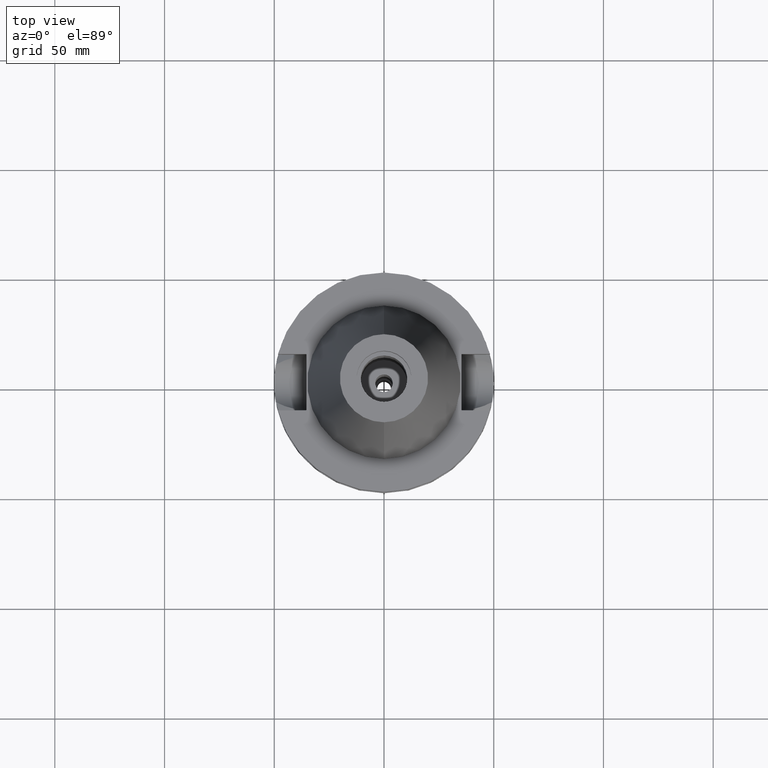
[diagram: clean part render]
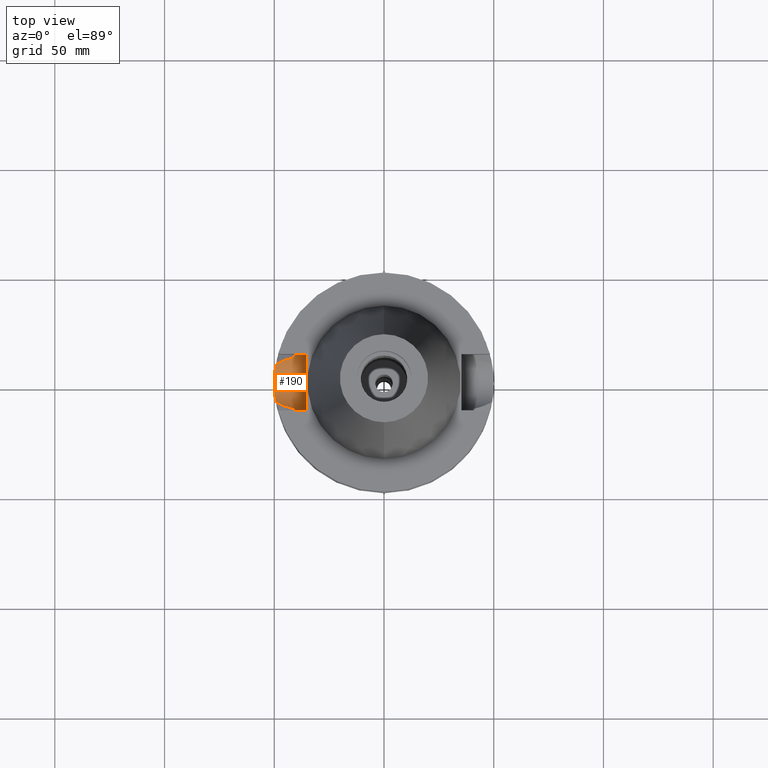
[diagram: same view with one face highlighted and labeled with its STEP entity id]
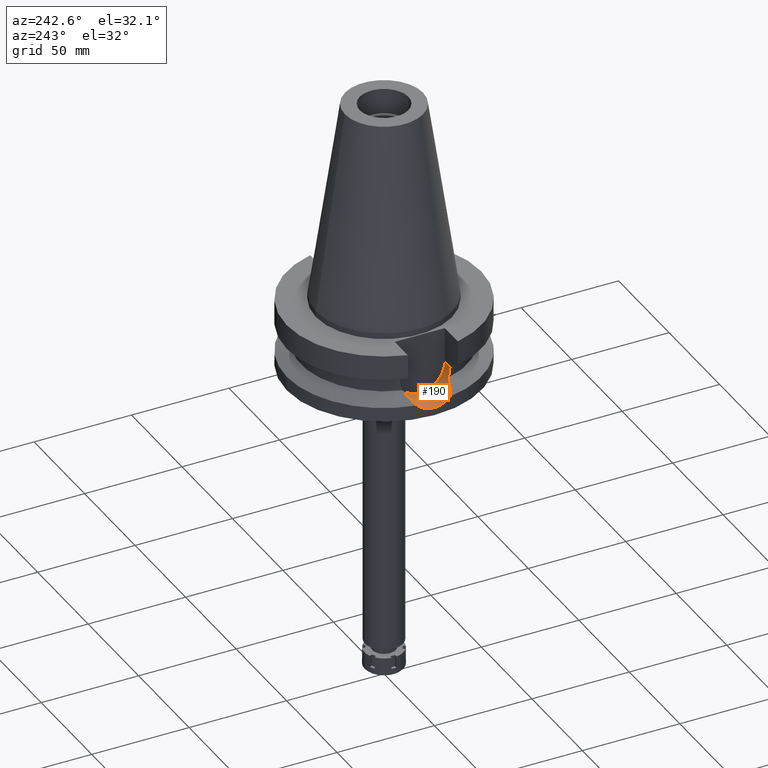
[diagram: same view with one face highlighted and labeled with its STEP entity id]
A machine part, top view. The second image highlights one B-rep face of the part: STEP entity #190.
A second angle (auxiliary view) of the same face is appended — the face is thin or edge-on in the first view.
In plain terms, the highlighted cylindrical surface (edge-blend (fillet) strip) has radius 12.85 mm, axis along (-1, 0, 0).
Its self-contained STEP definition (entity closure, byte-faithful):
#7 = CARTESIAN_POINT ( 'NONE',  ( -49.70815231116396404, 5.396331756492369180, -32.81362775790665864 ) ) ;
#28 = CARTESIAN_POINT ( 'NONE',  ( -49.99187456499022630, 0.9032426761927618841, -33.96962919614277610 ) ) ;
#53 = CARTESIAN_POINT ( 'NONE',  ( -49.72328725746910294, -5.263682542447209123, -32.87883983984767866 ) ) ;
#57 = CARTESIAN_POINT ( 'NONE',  ( -40.59188576338535626, 12.59181613885665385, -23.71309950381344933 ) ) ;
#71 = CARTESIAN_POINT ( 'NONE',  ( -49.55497938657500612, 6.656146421916068867, -32.14173509730801470 ) ) ;
#85 = B_SPLINE_CURVE_WITH_KNOTS ( 'NONE', 3,
 ( #2665, #1570, #409, #1220, #1867, #444, #3230, #1282, #2685, #1585, #2446, #466, #1809, #2425 ),
 .UNSPECIFIED., .F., .F.,
 ( 4, 2, 2, 1, 1, 2, 2, 4 ),
 ( 0.0000000000000000000, 0.2500000000000097700, 0.3750000000000154321, 0.4375000000000180966, 0.4687500000000194289, 0.4843750000000190403, 0.5000000000000186517, 1.000000000000000000 ),
 .UNSPECIFIED. ) ;
#102 = EDGE_CURVE ( 'NONE', #3419, #2797, #1650, .T. ) ;
#140 = CARTESIAN_POINT ( 'NONE',  ( -45.42019457717190534, 10.35030528403051520, -28.76537017674415964 ) ) ;
#152 = EDGE_CURVE ( 'NONE', #1960, #2797, #3336, .T. ) ;
#190 = ADVANCED_FACE ( 'NONE', ( #527 ), #1096, .F. ) ;
#209 = LINE ( 'NONE', #1025, #687 ) ;
#231 = CARTESIAN_POINT ( 'NONE',  ( -49.47566580406373760, 7.222569676697139229, -31.77964915373136279 ) ) ;
#281 = CARTESIAN_POINT ( 'NONE',  ( -49.80427849007765673, -4.419869523326255489, -33.21613890185354023 ) ) ;
#308 = VERTEX_POINT ( 'NONE', #1770 ) ;
#317 = CARTESIAN_POINT ( 'NONE',  ( -49.55322993650355556, 6.669162168907335264, -32.13384980552147852 ) ) ;
#322 = CARTESIAN_POINT ( 'NONE',  ( -40.59544857123437112, 12.58031941217195815, -23.76894563306476016 ) ) ;
#332 = AXIS2_PLACEMENT_3D ( 'NONE', #1383, #1113, #822 ) ;
#333 = CARTESIAN_POINT ( 'NONE',  ( -49.57420851442166310, -6.511617492667277851, -32.22817501051599010 ) ) ;
#343 = CARTESIAN_POINT ( 'NONE',  ( -40.51083188481999997, 12.84999999999999964, -21.14999999999999858 ) ) ;
#352 = ORIENTED_EDGE ( 'NONE', *, *, #503, .T. ) ;
#358 = CARTESIAN_POINT ( 'NONE',  ( -49.98151994496642914, -1.536776125549248917, -33.93130987534129162 ) ) ;
#363 = CARTESIAN_POINT ( 'NONE',  ( -40.85052569294000335, 11.72538061688000077, -26.40718074535000426 ) ) ;
#370 = ORIENTED_EDGE ( 'NONE', *, *, #102, .T. ) ;
#371 = CARTESIAN_POINT ( 'NONE',  ( -45.20729632760484407, 10.43022660862786921, -28.65586756579891770 ) ) ;
#374 = CARTESIAN_POINT ( 'NONE',  ( -49.26250064874000145, -8.556052234130000045, -30.73730776426999967 ) ) ;
#409 = CARTESIAN_POINT ( 'NONE',  ( -40.74530521662885718, -12.08734525798915982, -25.53455946907622476 ) ) ;
#428 = CARTESIAN_POINT ( 'NONE',  ( -42.55574160578765230, 11.29794399686500306, -27.28962728501409174 ) ) ;
#444 = CARTESIAN_POINT ( 'NONE',  ( -40.63720027270115054, -12.44499102499862353, -24.35263434040134101 ) ) ;
#447 = EDGE_LOOP ( 'NONE', ( #352, #3482, #370, #3694, #3172, #1712, #2943, #633 ) ) ;
#452 = CARTESIAN_POINT ( 'NONE',  ( -40.85052569294000335, 11.72538061688000077, -26.40718074535000426 ) ) ;
#466 = CARTESIAN_POINT ( 'NONE',  ( -40.54025138676031048, -12.75862549540203794, -22.93152005439002750 ) ) ;
#496 = B_SPLINE_CURVE_WITH_KNOTS ( 'NONE', 3,
 ( #865, #1140, #1786, #2575, #2271, #3165, #586, #1709, #2326, #2003, #2607, #2057, #2284, #3132, #1728, #1195 ),
 .UNSPECIFIED., .F., .F.,
 ( 4, 2, 2, 1, 1, 1, 1, 2, 2, 4 ),
 ( 0.0000000000000000000, 0.2499999999999403810, 0.3749999999999105715, 0.4374999999998964162, 0.4687499999998883116, 0.4843749999998834821, 0.4921874999998822053, 0.4960937499998825939, 0.4999999999998829825, 1.000000000000000000 ),
 .UNSPECIFIED. ) ;
#503 = EDGE_CURVE ( 'NONE', #572, #308, #85, .T. ) ;
#509 = DIRECTION ( 'NONE',  ( 0.0000000000000000000, -1.000000000000000000, 0.0000000000000000000 ) ) ;
#513 = CARTESIAN_POINT ( 'NONE',  ( -49.32372953362855128, 8.203519559120605820, -31.05192038084446793 ) ) ;
#527 = FACE_OUTER_BOUND ( 'NONE', #447, .T. ) ;
#559 = CARTESIAN_POINT ( 'NONE',  ( -49.99991418524941622, 0.01116271476028290327, -34.00001628486788974 ) ) ;
#572 = VERTEX_POINT ( 'NONE', #678 ) ;
#579 = CARTESIAN_POINT ( 'NONE',  ( -49.38324903674247679, -7.860828855443511287, -31.35774967441727057 ) ) ;
#586 = CARTESIAN_POINT ( 'NONE',  ( -45.98824443354860136, -10.13011390609869800, -29.05741297239413612 ) ) ;
#598 = CARTESIAN_POINT ( 'NONE',  ( -40.57496242610246640, 12.64633064307739474, -23.43373649621299748 ) ) ;
#611 = CARTESIAN_POINT ( 'NONE',  ( -49.79144986254237892, -4.561756691881045711, -33.16303606681064053 ) ) ;
#618 = CARTESIAN_POINT ( 'NONE',  ( -40.56599794183719609, 12.67508828619679484, -23.26599945042062245 ) ) ;
#629 = CARTESIAN_POINT ( 'NONE',  ( -49.78714585121937830, 4.608515934852143836, -33.14520686594116938 ) ) ;
#633 = ORIENTED_EDGE ( 'NONE', *, *, #1400, .T. ) ;
#661 = CARTESIAN_POINT ( 'NONE',  ( -41.72877758692180095, 11.52142555084906839, -26.86207299536003745 ) ) ;
#678 = CARTESIAN_POINT ( 'NONE',  ( -40.85052569294000335, -11.72538061688000077, -26.40718074535000426 ) ) ;
#687 = VECTOR ( 'NONE', #2161, 1000.000000000000000 ) ;
#822 = DIRECTION ( 'NONE',  ( 0.0000000000000000000, 0.0000000000000000000, -1.000000000000000000 ) ) ;
#841 = B_SPLINE_CURVE_WITH_KNOTS ( 'NONE', 3,
 ( #1848, #661, #428, #2938, #2424, #2087, #1526, #371, #1769, #140, #1569, #1808, #1792, #3229, #2065 ),
 .UNSPECIFIED., .F., .F.,
 ( 4, 2, 2, 1, 1, 1, 2, 2, 4 ),
 ( 0.0000000000000000000, 0.2499999999999895084, 0.3749999999999845124, 0.4374999999999819034, 0.4687499999999807931, 0.4843749999999808487, 0.4921874999999811262, 0.4999999999999813483, 1.000000000000000000 ),
 .UNSPECIFIED. ) ;
#859 = CARTESIAN_POINT ( 'NONE',  ( -49.66436400019284036, -5.785502170138319578, -32.62553262874713766 ) ) ;
#865 = CARTESIAN_POINT ( 'NONE',  ( -49.26250064874000145, -8.556052234130000045, -30.73730776426999967 ) ) ;
#878 = CARTESIAN_POINT ( 'NONE',  ( -49.54076674236112154, 6.761186822949497355, -32.07757331953104085 ) ) ;
#888 = CARTESIAN_POINT ( 'NONE',  ( -40.51083188482001418, 12.85000000000001918, -21.59155125953545706 ) ) ;
#898 = CARTESIAN_POINT ( 'NONE',  ( -49.79360975992653948, -4.538122689754245265, -33.17198411707287420 ) ) ;
#912 = CARTESIAN_POINT ( 'NONE',  ( -49.64367505699853211, -5.960659301228142581, -32.53565567264092806 ) ) ;
#931 = CARTESIAN_POINT ( 'NONE',  ( -49.55655204302973260, 6.644431293626245072, -32.14882155011933662 ) ) ;
#951 = CARTESIAN_POINT ( 'NONE',  ( -35.39999999999999858, 12.84999999999999964, -21.14999999999999858 ) ) ;
#1025 = CARTESIAN_POINT ( 'NONE',  ( -35.39999999999999858, -12.84999999999999964, -21.14999999999999858 ) ) ;
#1096 = CYLINDRICAL_SURFACE ( 'NONE', #332, 12.85000000000000320 ) ;
#1113 = DIRECTION ( 'NONE',  ( -1.000000000000000000, 0.0000000000000000000, 0.0000000000000000000 ) ) ;
#1135 = CARTESIAN_POINT ( 'NONE',  ( -49.99657010601042373, 0.6197521076395832162, -33.98745896368237851 ) ) ;
#1140 = CARTESIAN_POINT ( 'NONE',  ( -48.69888589103209853, -8.879491551986198772, -30.44865908768751339 ) ) ;
#1168 = CARTESIAN_POINT ( 'NONE',  ( -49.64898610872444351, 5.924049220385970038, -32.55967030369412640 ) ) ;
#1190 = CARTESIAN_POINT ( 'NONE',  ( -49.55878331876228060, -6.627792135814813967, -32.15886750778756209 ) ) ;
#1195 = CARTESIAN_POINT ( 'NONE',  ( -40.85052569294000335, -11.72538061688000077, -26.40718074535000426 ) ) ;
#1207 = CARTESIAN_POINT ( 'NONE',  ( -49.76598423032054086, 4.832695556055663921, -33.05724367525100860 ) ) ;
#1220 = CARTESIAN_POINT ( 'NONE',  ( -40.68244639105407146, -12.29666286613858084, -24.88711474769678844 ) ) ;
#1282 = CARTESIAN_POINT ( 'NONE',  ( -40.61157027093302929, -12.52820949424839547, -24.00859467746296261 ) ) ;
#1344 = VERTEX_POINT ( 'NONE', #1633 ) ;
#1346 = DIRECTION ( 'NONE',  ( 1.000000000000000000, 3.301887120261000215E-14, -2.502482870091999982E-14 ) ) ;
#1383 = CARTESIAN_POINT ( 'NONE',  ( -35.39999999999999858, 1.497743035356999952E-14, -21.14999999999999858 ) ) ;
#1397 = DIRECTION ( 'NONE',  ( 1.000000000000000000, 0.0000000000000000000, 0.0000000000000000000 ) ) ;
#1400 = EDGE_CURVE ( 'NONE', #2746, #572, #496, .T. ) ;
#1421 = CARTESIAN_POINT ( 'NONE',  ( -35.39999999999999858, 1.497743035356999952E-14, -21.14999999999999858 ) ) ;
#1425 = CARTESIAN_POINT ( 'NONE',  ( -49.72680802968159242, 5.221633248987733289, -32.89276324341103219 ) ) ;
#1438 = CARTESIAN_POINT ( 'NONE',  ( -49.55415699598182044, -6.662282079215984254, -32.13801721395490318 ) ) ;
#1444 = EDGE_CURVE ( 'NONE', #1960, #2698, #1878, .T. ) ;
#1454 = CARTESIAN_POINT ( 'NONE',  ( -49.86316841597869143, 3.774661687920132014, -33.45988861054671304 ) ) ;
#1474 = CARTESIAN_POINT ( 'NONE',  ( -49.99991299091239227, -0.01387171431918541795, -34.00001339701643133 ) ) ;
#1485 = CARTESIAN_POINT ( 'NONE',  ( -40.58662774857589284, 12.60877356363140400, -23.62931612667402703 ) ) ;
#1494 = CARTESIAN_POINT ( 'NONE',  ( -49.54911688010221127, 6.699663358771625887, -32.11529720896147921 ) ) ;
#1526 = CARTESIAN_POINT ( 'NONE',  ( -44.90440048842951626, 10.54136038319483326, -28.50005410684843099 ) ) ;
#1569 = CARTESIAN_POINT ( 'NONE',  ( -45.46246369502895135, 10.33427461986800111, -28.78711008710929775 ) ) ;
#1570 = CARTESIAN_POINT ( 'NONE',  ( -40.79434733663808998, -11.92110265459549190, -25.97065107317780530 ) ) ;
#1585 = CARTESIAN_POINT ( 'NONE',  ( -40.60257244295533496, -12.55730800210175779, -23.87713024257998740 ) ) ;
#1633 = CARTESIAN_POINT ( 'NONE',  ( -49.26250064874000145, 8.556052234130000045, -30.73730776426999967 ) ) ;
#1645 = CARTESIAN_POINT ( 'NONE',  ( -49.37891072628274003, 7.861784141872273146, -31.32216870174199386 ) ) ;
#1650 = CIRCLE ( 'NONE', #2608, 12.84999999999999964 ) ;
#1654 = CARTESIAN_POINT ( 'NONE',  ( -35.39999999999999858, -12.84999999999999964, -21.14999999999999858 ) ) ;
#1703 = CARTESIAN_POINT ( 'NONE',  ( -49.86770969757689187, -3.635792841928290109, -33.47650553576112031 ) ) ;
#1709 = CARTESIAN_POINT ( 'NONE',  ( -45.67149872245150277, -10.25430766656900161, -28.89452728089608158 ) ) ;
#1712 = ORIENTED_EDGE ( 'NONE', *, *, #3341, .T. ) ;
#1724 = CARTESIAN_POINT ( 'NONE',  ( -49.26250064874000145, -8.556052234130000045, -30.73730776426999967 ) ) ;
#1728 = CARTESIAN_POINT ( 'NONE',  ( -42.54302074052124993, -11.33233513465019016, -27.28381179574212823 ) ) ;
#1739 = CARTESIAN_POINT ( 'NONE',  ( -49.60527657791600120, 6.280734339319517190, -32.36827992143699362 ) ) ;
#1756 = CARTESIAN_POINT ( 'NONE',  ( -49.59437430904296917, -6.356898426437507688, -32.31828320211356242 ) ) ;
#1766 = VECTOR ( 'NONE', #1346, 1000.000000000000000 ) ;
#1769 = CARTESIAN_POINT ( 'NONE',  ( -45.35664064293970199, 10.37432916529150972, -28.73268267299861023 ) ) ;
#1770 = CARTESIAN_POINT ( 'NONE',  ( -40.51083188481999997, -12.84999999999999964, -21.14999999999999858 ) ) ;
#1776 = CARTESIAN_POINT ( 'NONE',  ( -49.99988097685182709, 0.05777274215273424385, -33.99989126171249865 ) ) ;
#1786 = CARTESIAN_POINT ( 'NONE',  ( -48.09102963288681565, -9.195488455513157078, -30.13723376970363788 ) ) ;
#1792 = CARTESIAN_POINT ( 'NONE',  ( -46.92209778685330690, 9.777083338253845568, -29.53781729124638034 ) ) ;
#1808 = CARTESIAN_POINT ( 'NONE',  ( -45.48243387994851616, 10.32667729751427821, -28.79738107114322432 ) ) ;
#1809 = CARTESIAN_POINT ( 'NONE',  ( -40.51083188481999287, -12.84999999999998721, -22.03309742078719324 ) ) ;
#1848 = CARTESIAN_POINT ( 'NONE',  ( -40.85052569294000335, 11.72538061688000077, -26.40718074535000426 ) ) ;
#1867 = CARTESIAN_POINT ( 'NONE',  ( -40.66327750826899745, -12.35976744502590563, -24.67240287692017375 ) ) ;
#1878 = B_SPLINE_CURVE_WITH_KNOTS ( 'NONE', 3,
 ( #343, #888, #2023, #2039, #3147, #618, #598, #1485, #57, #322, #2343, #2841, #1988, #363 ),
 .UNSPECIFIED., .F., .F.,
 ( 4, 2, 2, 1, 1, 2, 2, 4 ),
 ( 0.0000000000000000000, 0.2499999999999897859, 0.3749999999999846234, 0.4374999999999831246, 0.4687499999999832356, 0.4843749999999832356, 0.4999999999999833467, 1.000000000000000000 ),
 .UNSPECIFIED. ) ;
#1960 = VERTEX_POINT ( 'NONE', #2548 ) ;
#1988 = CARTESIAN_POINT ( 'NONE',  ( -40.73816962964794186, 12.11682243018512750, -25.53412644634842366 ) ) ;
#1996 = CARTESIAN_POINT ( 'NONE',  ( -49.61106985605370312, -6.224615895574604707, -32.39218330898737719 ) ) ;
#2000 = EDGE_CURVE ( 'NONE', #1344, #2746, #3201, .T. ) ;
#2003 = CARTESIAN_POINT ( 'NONE',  ( -45.43076390174375945, -10.34638715035858425, -28.77070550468331689 ) ) ;
#2023 = CARTESIAN_POINT ( 'NONE',  ( -40.51818735908894809, 12.82722126770181248, -22.03688626290863795 ) ) ;
#2035 = CARTESIAN_POINT ( 'NONE',  ( -49.79024291477832520, -4.574903425347306651, -33.15803416390659208 ) ) ;
#2039 = CARTESIAN_POINT ( 'NONE',  ( -40.54025378189581374, 12.75731467218668058, -22.70686882179913013 ) ) ;
#2051 = CARTESIAN_POINT ( 'NONE',  ( -49.55655823011854721, -6.644396915567752693, -32.14884227884135015 ) ) ;
#2057 = CARTESIAN_POINT ( 'NONE',  ( -45.37304644482951232, -10.36817408183761735, -28.74101577362029403 ) ) ;
#2065 = CARTESIAN_POINT ( 'NONE',  ( -49.26250064874000145, 8.556052234130000045, -30.73730776426999967 ) ) ;
#2072 = CARTESIAN_POINT ( 'NONE',  ( -49.99934626388234449, -0.7783924087754630072, -33.99780972341163476 ) ) ;
#2087 = CARTESIAN_POINT ( 'NONE',  ( -44.63756312598389542, 10.63538792231526386, -28.36273639931296842 ) ) ;
#2161 = DIRECTION ( 'NONE',  ( -1.000000000000000000, 3.440913946376999995E-14, 0.0000000000000000000 ) ) ;
#2271 = CARTESIAN_POINT ( 'NONE',  ( -46.77577374061216631, -9.802246597663636152, -29.46215184999143943 ) ) ;
#2280 = CARTESIAN_POINT ( 'NONE',  ( -49.78020860950417159, 4.683043310453007813, -33.11642240103837054 ) ) ;
#2284 = CARTESIAN_POINT ( 'NONE',  ( -45.36012579429056757, -10.37303643557536859, -28.73436928302000126 ) ) ;
#2318 = CARTESIAN_POINT ( 'NONE',  ( -49.84644755714995767, -3.921701316247803604, -33.38981237020060178 ) ) ;
#2326 = CARTESIAN_POINT ( 'NONE',  ( -45.51131127411156285, -10.31579704021254074, -28.81213714789666369 ) ) ;
#2338 = CARTESIAN_POINT ( 'NONE',  ( -49.55507279109285435, -6.655467508106932328, -32.14214692837424536 ) ) ;
#2343 = CARTESIAN_POINT ( 'NONE',  ( -40.59737061725677876, 12.57411364518127783, -23.79856269428630355 ) ) ;
#2355 = CARTESIAN_POINT ( 'NONE',  ( -49.99978007004364144, 0.1277363651429695157, -33.99951339606798939 ) ) ;
#2424 = CARTESIAN_POINT ( 'NONE',  ( -44.09427192450845467, 10.82153748345362132, -28.08303663560364782 ) ) ;
#2425 = CARTESIAN_POINT ( 'NONE',  ( -40.51083188481999997, -12.84999999999999964, -21.14999999999999858 ) ) ;
#2446 = CARTESIAN_POINT ( 'NONE',  ( -40.60092910951220091, -12.56261850439631722, -23.85257851100598003 ) ) ;
#2548 = CARTESIAN_POINT ( 'NONE',  ( -40.51083188481999997, 12.84999999999999964, -21.14999999999999858 ) ) ;
#2572 = CARTESIAN_POINT ( 'NONE',  ( -49.79288518047052747, 4.546060314977777850, -33.16898483582497903 ) ) ;
#2575 = CARTESIAN_POINT ( 'NONE',  ( -47.11288299501283205, -9.652663783147403365, -29.63526968229109926 ) ) ;
#2601 = CARTESIAN_POINT ( 'NONE',  ( -49.55614273364790989, 6.647481783964426683, -32.14697738341039468 ) ) ;
#2607 = CARTESIAN_POINT ( 'NONE',  ( -45.39614638897230492, -10.35946378379306232, -28.75289841961087234 ) ) ;
#2608 = AXIS2_PLACEMENT_3D ( 'NONE', #1421, #1397, #509 ) ;
#2624 = CARTESIAN_POINT ( 'NONE',  ( -49.56395370300047887, -6.589055711979320051, -32.18213532710080216 ) ) ;
#2637 = CARTESIAN_POINT ( 'NONE',  ( -49.90699458491213392, -3.063359791785632780, -33.63580153760008074 ) ) ;
#2665 = CARTESIAN_POINT ( 'NONE',  ( -40.85052569294000335, -11.72538061688000077, -26.40718074535000426 ) ) ;
#2685 = CARTESIAN_POINT ( 'NONE',  ( -40.60613812303880366, -12.54578004799953739, -23.92968102609992087 ) ) ;
#2698 = VERTEX_POINT ( 'NONE', #452 ) ;
#2746 = VERTEX_POINT ( 'NONE', #374 ) ;
#2767 = CARTESIAN_POINT ( 'NONE',  ( -49.26250064874000145, 8.556052234130000045, -30.73730776426999967 ) ) ;
#2785 = CARTESIAN_POINT ( 'NONE',  ( -49.45261097691241758, 7.378715929221312919, -31.67219524307446221 ) ) ;
#2797 = VERTEX_POINT ( 'NONE', #951 ) ;
#2833 = CARTESIAN_POINT ( 'NONE',  ( -49.81880725732322901, -4.254068733136101343, -33.27613423617398780 ) ) ;
#2841 = CARTESIAN_POINT ( 'NONE',  ( -40.65436025735043302, 12.39001373507936599, -24.66363152923379332 ) ) ;
#2871 = CARTESIAN_POINT ( 'NONE',  ( -49.79008146598089013, 4.576641034239830930, -33.15737214666359733 ) ) ;
#2887 = CARTESIAN_POINT ( 'NONE',  ( -49.79683695212182926, -4.502663508518435442, -33.18534950411583395 ) ) ;
#2912 = CARTESIAN_POINT ( 'NONE',  ( -49.96641267293246358, 1.854385219668791107, -33.87144511913139411 ) ) ;
#2938 = CARTESIAN_POINT ( 'NONE',  ( -43.71925582141248157, 10.94309927656804327, -27.88981406731468127 ) ) ;
#2943 = ORIENTED_EDGE ( 'NONE', *, *, #2000, .T. ) ;
#3046 = EDGE_CURVE ( 'NONE', #3419, #308, #209, .T. ) ;
#3128 = CARTESIAN_POINT ( 'NONE',  ( -49.48027691455325083, -7.211450073346491685, -31.80475318143746577 ) ) ;
#3132 = CARTESIAN_POINT ( 'NONE',  ( -44.04281687528923328, -10.86797612564673621, -28.05672742768609851 ) ) ;
#3143 = CARTESIAN_POINT ( 'NONE',  ( -49.91493021332784252, 3.003896466815074717, -33.66817669889064035 ) ) ;
#3147 = CARTESIAN_POINT ( 'NONE',  ( -40.54944812473201665, 12.72805978472033317, -22.93052269427768053 ) ) ;
#3158 = CARTESIAN_POINT ( 'NONE',  ( -49.75837799924433824, -4.920711290654222303, -33.02594009685563492 ) ) ;
#3165 = CARTESIAN_POINT ( 'NONE',  ( -46.25351929634714310, -10.02165307108178460, -29.19377532055426272 ) ) ;
#3172 = ORIENTED_EDGE ( 'NONE', *, *, #1444, .T. ) ;
#3177 = CARTESIAN_POINT ( 'NONE',  ( -49.79203021163729659, 4.555405786585890127, -33.16544452545557675 ) ) ;
#3201 = B_SPLINE_CURVE_WITH_KNOTS ( 'NONE', 3,
 ( #2767, #513, #1645, #2785, #231, #3354, #3465, #878, #1494, #317, #71, #2601, #931, #1739, #1168, #7, #1425, #3481, #1207, #2280, #629, #2871, #3177, #2572, #1454, #3143, #2912, #3408, #28, #1135, #3449, #2355, #1776, #559, #1474, #2072, #358, #3693, #2637, #1703, #2318, #2833, #281, #2887, #898, #611, #2035, #3158, #53, #859, #912, #1996, #1756, #333, #2624, #1190, #2051, #2338, #1438, #3128, #579, #1724 ),
 .UNSPECIFIED., .F., .F.,
 ( 4, 2, 2, 1, 1, 1, 1, 2, 2, 2, 2, 1, 1, 1, 2, 2, 2, 2, 1, 1, 1, 2, 2, 2, 2, 1, 1, 1, 1, 2, 2, 2, 2, 1, 1, 1, 1, 2, 2, 4 ),
 ( 0.0000000000000000000, 0.06250000000000703604, 0.09375000000001018630, 0.1093750000000116990, 0.1171875000000129341, 0.1210937500000133921, 0.1230468750000136280, 0.1240234375000136835, 0.1250000000000137390, 0.1875000000000092426, 0.2187500000000071887, 0.2343750000000064670, 0.2421875000000059674, 0.2460937500000056066, 0.2480468750000056066, 0.2500000000000056066, 0.3750000000000016653, 0.4374999999999997224, 0.4687499999999987232, 0.4843749999999981681, 0.4921874999999978906, 0.4960937499999977796, 0.4999999999999976685, 0.6249999999999936717, 0.6874999999999916733, 0.7187499999999906741, 0.7343749999999903411, 0.7421874999999901190, 0.7460937499999901190, 0.7480468749999903411, 0.7499999999999904521, 0.8124999999999986677, 0.8437500000000024425, 0.8593750000000042188, 0.8671875000000052180, 0.8710937500000059952, 0.8730468750000061062, 0.8740234375000064393, 0.8750000000000067724, 1.000000000000000000 ),
 .UNSPECIFIED. ) ;
#3229 = CARTESIAN_POINT ( 'NONE',  ( -48.17473715128684120, 9.180282665983176216, -30.18022246854494028 ) ) ;
#3230 = CARTESIAN_POINT ( 'NONE',  ( -40.62483067706965301, -12.48524489601429188, -24.19332376315256639 ) ) ;
#3336 = LINE ( 'NONE', #3393, #1766 ) ;
#3341 = EDGE_CURVE ( 'NONE', #2698, #1344, #841, .T. ) ;
#3354 = CARTESIAN_POINT ( 'NONE',  ( -49.50798016020279135, 6.996952391812111038, -31.92837050268992982 ) ) ;
#3393 = CARTESIAN_POINT ( 'NONE',  ( -40.51083188481999997, 12.84999999999999964, -21.14999999999999858 ) ) ;
#3408 = CARTESIAN_POINT ( 'NONE',  ( -49.97921345339747745, 1.472277931494027747, -33.92105547428265311 ) ) ;
#3419 = VERTEX_POINT ( 'NONE', #1654 ) ;
#3449 = CARTESIAN_POINT ( 'NONE',  ( -49.99918696134230345, 0.2913176031074600214, -33.99729381970359299 ) ) ;
#3465 = CARTESIAN_POINT ( 'NONE',  ( -49.52357036712534466, 6.886290592483788053, -31.99961560319520260 ) ) ;
#3481 = CARTESIAN_POINT ( 'NONE',  ( -49.75319208401477766, 4.961948302789894960, -33.00370953055943346 ) ) ;
#3482 = ORIENTED_EDGE ( 'NONE', *, *, #3046, .F. ) ;
#3693 = CARTESIAN_POINT ( 'NONE',  ( -49.92886531844424525, -2.680927593405663778, -33.72320138176053916 ) ) ;
#3694 = ORIENTED_EDGE ( 'NONE', *, *, #152, .F. ) ;